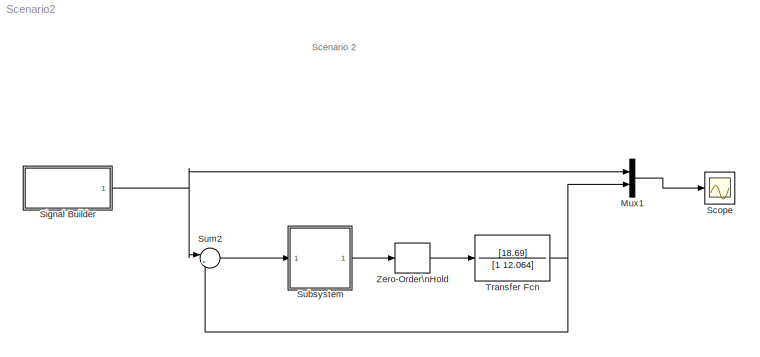
MODEL Scenario2
KIND model
BLOCK [Mux] Mux1
  DisplayOption = bar
  Inputs = 2
  Ports = [2, 1]
  SID = 22
BLOCK [Scope] Scope
  Floating = off
  NumInputPorts = 1
  Ports = [1]
  SID = 23
  ScopeSpecificationString = Simulink.scopes.TimeScopeBlockCfg('CurrentConfiguration', extmgr.ConfigurationSet(extmgr.Configuration('Core','General UI',true),extmgr.Configuration('Core','Source UI',true),extmgr.Configuration('Sources','WiredSimulink',true),extmgr.Configuration('Visuals','Time Domain',true,'SerializedDisplays',{struct('MinYLimReal','-18.75836','MaxYLimReal','168.8252','YLabelReal','','MinYLimMag','0.00000','Ma...<+1724ch>
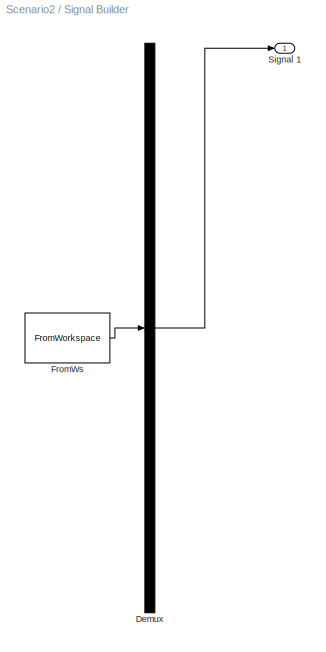
BLOCK [SubSystem] Signal Builder
  ClipboardFcn = sigbuilder_block('clipboard');
  CloseFcn = sigbuilder_block('close');
  ContinueFcn = sigbuilder_block('continue');
  CopyFcn = sigbuilder_block('copy');
  DeleteFcn = sigbuilder_block('delete');
  LoadFcn = sigbuilder_block('load');
  MaskHideContents = on
  ModelCloseFcn = sigbuilder_block('modelClose');
  NameChangeFcn = sigbuilder_block('namechange');
  OpenFcn = sigbuilder_block('open',[0.75 30.75 958.5 985.5 ]);
  PauseFcn = sigbuilder_block('pause');
  Ports = [0, 1]
  PreSaveFcn = sigbuilder_block('preSave');
  RequestExecContextInheritance = off
  SID = 19
  StartFcn = sigbuilder_block('start');
  StopFcn = sigbuilder_block('stop');
  Tag = STV Subsys
BLOCK [Demux] Signal Builder/Demux
  DisplayOption = none
  Outputs = 1
  Ports = [1, 1]
  SID = 19:1
  Tag = STV Demux
BLOCK [FromWorkspace] Signal Builder/FromWs
  SID = 19:2
  SigBuilderData = DataTag0
  Tag = STV FromWs
  VariableName = tuvar
  VnvData = DataTag1
BLOCK [Outport] Signal Builder/Signal 1
  SID = 19:3
  Tag = STV Outport
  VectorParamsAs1DForOutWhenUnconnected = off
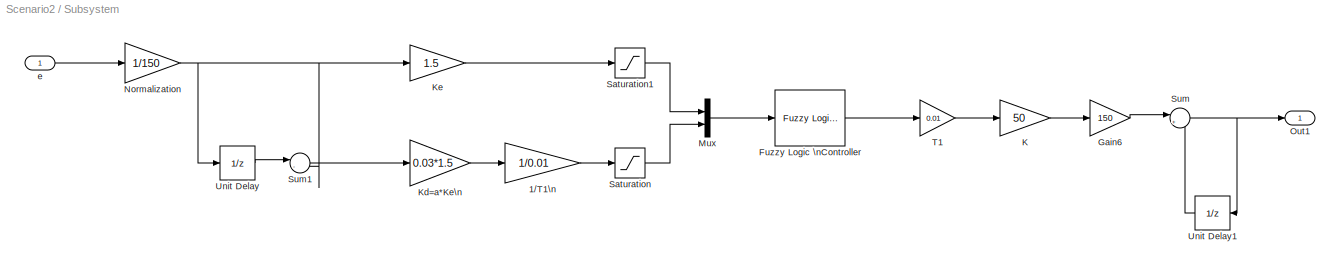
BLOCK [SubSystem] Subsystem
  Ports = [1, 1]
  RequestExecContextInheritance = off
  SID = 25
BLOCK [Gain] Subsystem/1//T1\n
  Gain = 1/0.01
  SID = 2
BLOCK [Reference] Subsystem/Fuzzy Logic \nController  REF=fuzblock/Fuzzy Logic \nController  (lib defined in mdl_858b3b3e7478)
  AggregatedOutputs = off
  DataType = double
  EmptyOutputFuzzySetMessage = warning
  FIS = 'dc_flc.fis'
  FuzzifiedInputs = off
  NoRuleFiredMessage = warning
  OutOfRangeInputValueMessage = warning
  OutputSampleNumber = 101
  Ports = [1, 1]
  RTWMemSecDataConstants = Inherit from model
  RTWMemSecDataInternal = Inherit from model
  RTWMemSecDataParameters = Inherit from model
  RTWMemSecFuncExecute = Inherit from model
  RTWMemSecFuncInitTerm = Inherit from model
  RuleFiringStrengths = off
  RuleOutputs = off
  SID = 17
  SimulateUsing = Interpreted execution
  SourceBlock = fuzblock/Fuzzy Logic \nController
  SourceProductBaseCode = FL
  SourceType = Fuzzy Inference System
BLOCK [Gain] Subsystem/Gain6
  Gain = 150
  SID = 11
BLOCK [Gain] Subsystem/K
  Gain = 50
  SID = 12
BLOCK [Gain] Subsystem/Kd=a*Ke\n
  Gain = 0.03*1.5
  SID = 3
BLOCK [Gain] Subsystem/Ke
  Gain = 1.5
  SID = 4
BLOCK [Mux] Subsystem/Mux
  DisplayOption = bar
  Inputs = 2
  Ports = [2, 1]
  SID = 5
BLOCK [Gain] Subsystem/Normalization
  Gain = 1/150
  SID = 6
BLOCK [Outport] Subsystem/Out1
  SID = 27
  VectorParamsAs1DForOutWhenUnconnected = off
BLOCK [Saturate] Subsystem/Saturation
  LowerLimit = -1
  SID = 7
  UpperLimit = 1
BLOCK [Saturate] Subsystem/Saturation1
  LowerLimit = -1
  SID = 8
  UpperLimit = 1
BLOCK [Sum] Subsystem/Sum
  Inputs = |++
  Ports = [2, 1]
  SID = 13
BLOCK [Sum] Subsystem/Sum1
  Inputs = |-+
  Ports = [2, 1]
  SID = 9
BLOCK [Gain] Subsystem/T1
  Gain = 0.01
  SID = 14
BLOCK [UnitDelay] Subsystem/Unit Delay
  HasFrameUpgradeWarning = on
  SID = 10
  SampleTime = 0.01
BLOCK [UnitDelay] Subsystem/Unit Delay1
  HasFrameUpgradeWarning = on
  SID = 15
  SampleTime = 0.01
BLOCK [Inport] Subsystem/e
  SID = 26
BLOCK [Sum] Sum2
  Inputs = |+-
  Ports = [2, 1]
  SID = 24
BLOCK [TransferFcn] Transfer Fcn
  Denominator = [1 12.064]
  Numerator = [18.69]
  SID = 20
BLOCK [ZeroOrderHold] Zero-Order\nHold
  SID = 21
  SampleTime = 0.01
ANNOTATION (root): \n \n Scenario 2
LINE Mux1:1 -> Scope:1
LINE Signal Builder/Demux:1 -> Signal Builder/Signal 1:1
LINE Signal Builder/FromWs:1 -> Signal Builder/Demux:1
NET Signal Builder:1 -> Mux1:1, Sum2:1
LINE Subsystem/1//T1\n:1 -> Subsystem/Saturation:1
LINE Subsystem/Fuzzy Logic \nController:1 -> Subsystem/T1:1
LINE Subsystem/Gain6:1 -> Subsystem/Sum:1
LINE Subsystem/K:1 -> Subsystem/Gain6:1
LINE Subsystem/Kd=a*Ke\n:1 -> Subsystem/1//T1\n:1
LINE Subsystem/Ke:1 -> Subsystem/Saturation1:1
LINE Subsystem/Mux:1 -> Subsystem/Fuzzy Logic \nController:1
NET Subsystem/Normalization:1 -> Subsystem/Ke:1, Subsystem/Sum1:2, Subsystem/Unit Delay:1
LINE Subsystem/Saturation1:1 -> Subsystem/Mux:1
LINE Subsystem/Saturation:1 -> Subsystem/Mux:2
LINE Subsystem/Sum1:1 -> Subsystem/Kd=a*Ke\n:1
NET Subsystem/Sum:1 -> Subsystem/Out1:1, Subsystem/Unit Delay1:1
LINE Subsystem/T1:1 -> Subsystem/K:1
LINE Subsystem/Unit Delay1:1 -> Subsystem/Sum:2
LINE Subsystem/Unit Delay:1 -> Subsystem/Sum1:1
LINE Subsystem/e:1 -> Subsystem/Normalization:1
LINE Subsystem:1 -> Zero-Order\nHold:1
LINE Sum2:1 -> Subsystem:1
NET Transfer Fcn:1 -> Mux1:2, Sum2:2
LINE Zero-Order\nHold:1 -> Transfer Fcn:1
note: NET lines group one-source signal fan-out (src -> all destinations, sorted); 1:1 wires keep LINE
